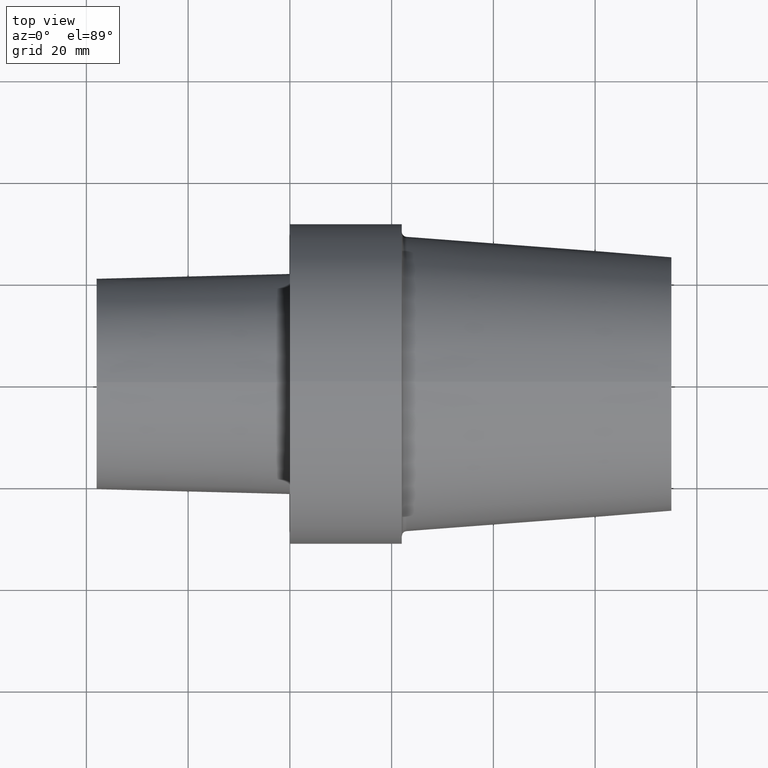
[diagram: clean part render]
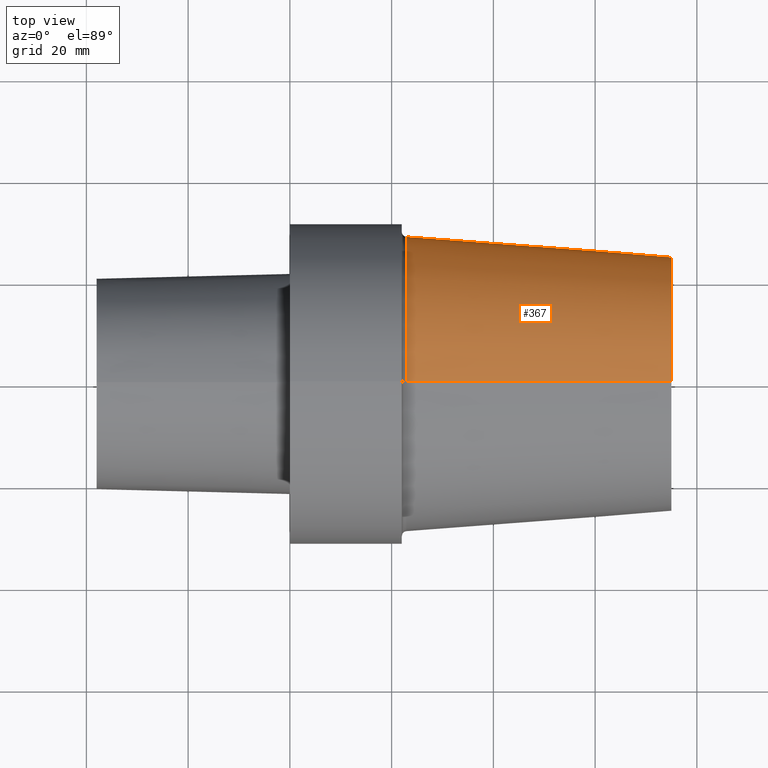
[diagram: same view with one face highlighted and labeled with its STEP entity id]
A machine part, top view. The second image highlights one B-rep face of the part: STEP entity #367.
In plain terms, the highlighted conical surface has half-angle 4.316 deg.
Its self-contained STEP definition (entity closure, byte-faithful):
#1 = EDGE_CURVE ( 'NONE', #379, #260, #272, .T. ) ;
#5 = EDGE_LOOP ( 'NONE', ( #57, #229, #126, #223 ) ) ;
#12 = EDGE_CURVE ( 'NONE', #189, #182, #350, .T. ) ;
#22 = AXIS2_PLACEMENT_3D ( 'NONE', #69, #124, #150 ) ;
#30 = FACE_OUTER_BOUND ( 'NONE', #5, .T. ) ;
#36 = DIRECTION ( 'NONE',  ( 0.000000000000000000, 0.000000000000000000, 1.000000000000000000 ) ) ;
#47 = CONICAL_SURFACE ( 'NONE', #101, 24.99999997449999967, 0.07532889090399662313 ) ;
#57 = ORIENTED_EDGE ( 'NONE', *, *, #120, .T. ) ;
#60 = VECTOR ( 'NONE', #262, 1000.000000000000114 ) ;
#69 = CARTESIAN_POINT ( 'NONE',  ( 74.99999992349999900, 0.000000000000000000, 0.000000000000000000 ) ) ;
#101 = AXIS2_PLACEMENT_3D ( 'NONE', #263, #282, #154 ) ;
#107 = CIRCLE ( 'NONE', #22, 24.99999997449999967 ) ;
#120 = EDGE_CURVE ( 'NONE', #189, #379, #107, .T. ) ;
#122 = DIRECTION ( 'NONE',  ( -0.9971641204809192915, 9.216406412095682842E-18, -0.07525766954612962689 ) ) ;
#124 = DIRECTION ( 'NONE',  ( -1.000000000000000000, 0.000000000000000000, 0.000000000000000000 ) ) ;
#126 = ORIENTED_EDGE ( 'NONE', *, *, #305, .F. ) ;
#150 = DIRECTION ( 'NONE',  ( 0.000000000000000000, 0.000000000000000000, 1.000000000000000000 ) ) ;
#154 = DIRECTION ( 'NONE',  ( 0.000000000000000000, 0.000000000000000000, 1.000000000000000000 ) ) ;
#182 = VERTEX_POINT ( 'NONE', #230 ) ;
#188 = CIRCLE ( 'NONE', #195, 28.93020810049118552 ) ;
#189 = VERTEX_POINT ( 'NONE', #349 ) ;
#195 = AXIS2_PLACEMENT_3D ( 'NONE', #214, #268, #36 ) ;
#202 = CARTESIAN_POINT ( 'NONE',  ( 22.92474230661676060, 3.542928674893338124E-15, -28.93020810049118552 ) ) ;
#214 = CARTESIAN_POINT ( 'NONE',  ( 22.92474230661676060, 0.000000000000000000, 0.000000000000000000 ) ) ;
#223 = ORIENTED_EDGE ( 'NONE', *, *, #12, .F. ) ;
#229 = ORIENTED_EDGE ( 'NONE', *, *, #1, .T. ) ;
#230 = CARTESIAN_POINT ( 'NONE',  ( 22.92474230661676060, 0.000000000000000000, 28.93020810049118552 ) ) ;
#237 = CARTESIAN_POINT ( 'NONE',  ( 74.99999992349999900, 0.000000000000000000, 24.99999997449999967 ) ) ;
#244 = CARTESIAN_POINT ( 'NONE',  ( 74.99999992349999900, 3.302272834819433089E-15, -24.99999997449999967 ) ) ;
#260 = VERTEX_POINT ( 'NONE', #202 ) ;
#262 = DIRECTION ( 'NONE',  ( -0.9971641204809192915, 0.000000000000000000, 0.07525766954612962689 ) ) ;
#263 = CARTESIAN_POINT ( 'NONE',  ( 74.99999992349999900, 0.000000000000000000, 0.000000000000000000 ) ) ;
#268 = DIRECTION ( 'NONE',  ( -1.000000000000000000, 0.000000000000000000, 0.000000000000000000 ) ) ;
#272 = LINE ( 'NONE', #318, #307 ) ;
#282 = DIRECTION ( 'NONE',  ( -1.000000000000000000, 0.000000000000000000, 0.000000000000000000 ) ) ;
#305 = EDGE_CURVE ( 'NONE', #182, #260, #188, .T. ) ;
#307 = VECTOR ( 'NONE', #122, 1000.000000000000114 ) ;
#318 = CARTESIAN_POINT ( 'NONE',  ( 74.99999992349999900, 3.061616994745535943E-15, -24.99999997449999967 ) ) ;
#349 = CARTESIAN_POINT ( 'NONE',  ( 74.99999992349999900, 0.000000000000000000, 24.99999997449999967 ) ) ;
#350 = LINE ( 'NONE', #237, #60 ) ;
#367 = ADVANCED_FACE ( 'NONE', ( #30 ), #47, .T. ) ;
#379 = VERTEX_POINT ( 'NONE', #244 ) ;